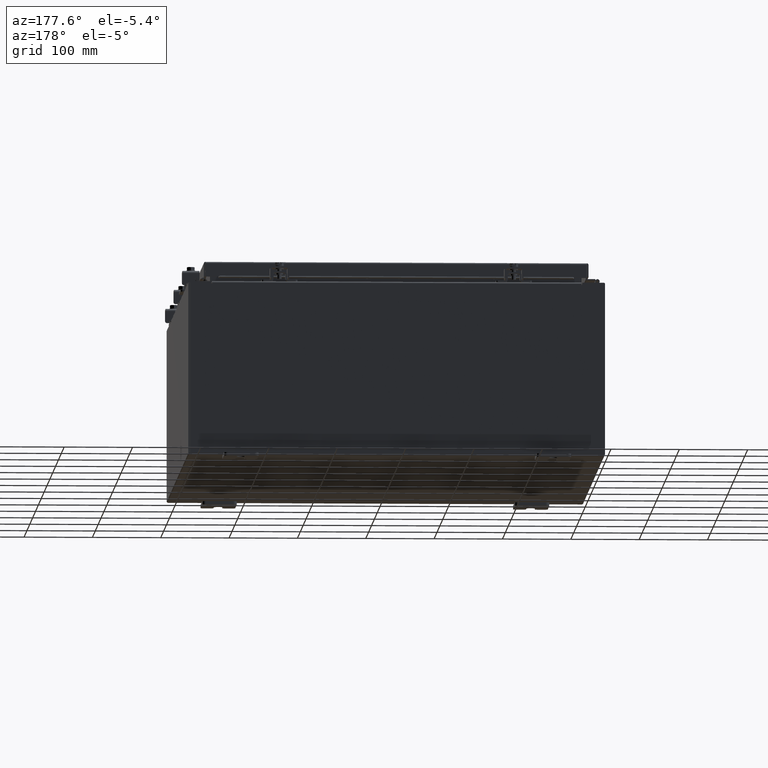
[diagram: clean part render]
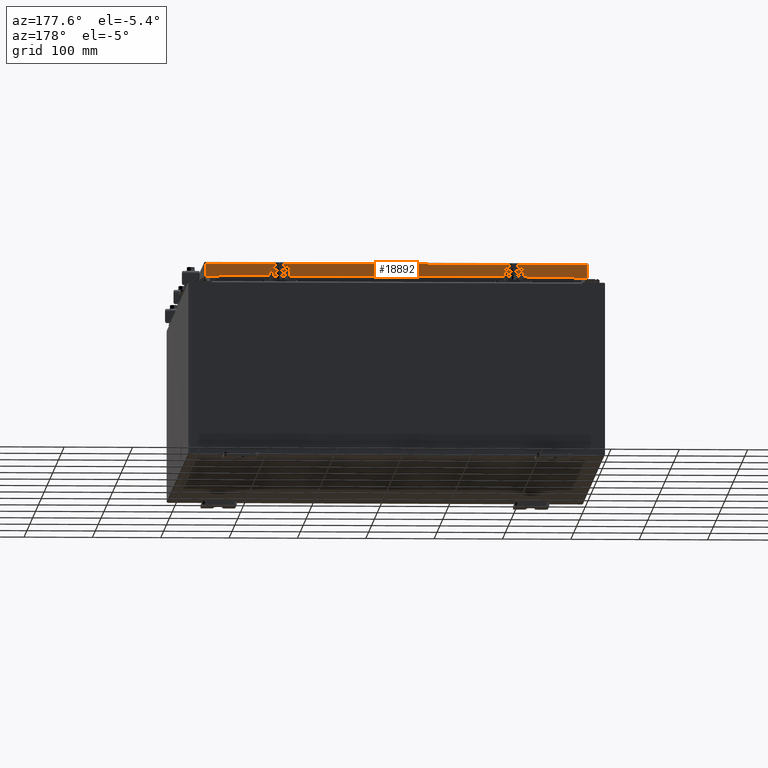
[diagram: same view with one face highlighted and labeled with its STEP entity id]
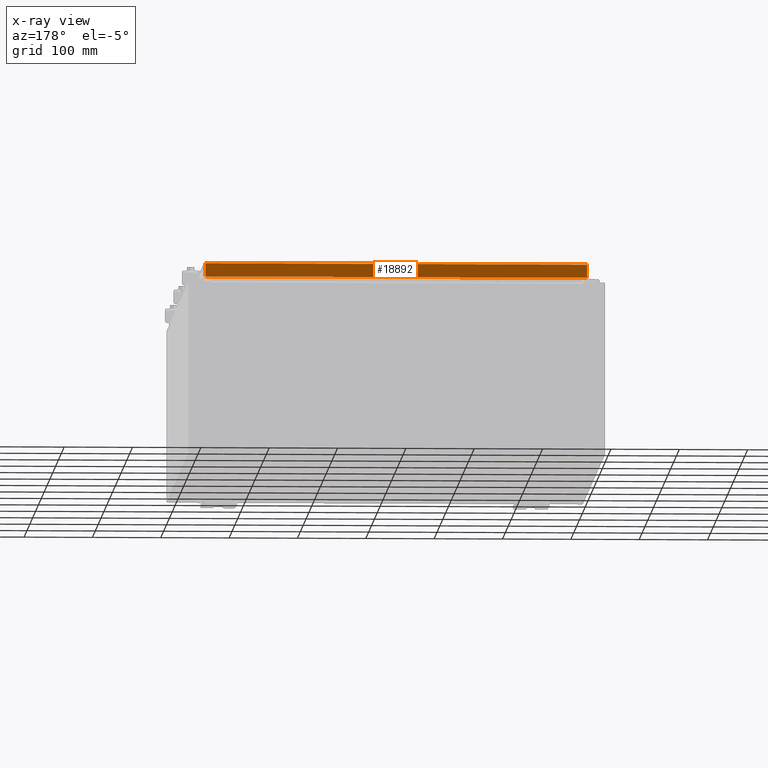
[diagram: x-ray of the same camera — body ghosted, the highlighted face saturated]
A machine part, auxiliary view. The second image highlights one B-rep face of the part: STEP entity #18892.
The next image is the same camera in x-ray: the body ghosted, the highlighted face saturated — about 0% of this face is hidden behind the body in this view.
In plain terms, the highlighted planar face has unit normal (0, -1, -0).
Its self-contained STEP definition (entity closure, byte-faithful):
#995 = EDGE_CURVE ( 'NONE', #3431, #19469, #24693, .T. ) ;
#1488 = PLANE ( 'NONE',  #2631 ) ;
#1804 = EDGE_CURVE ( 'NONE', #4728, #19469, #29216, .T. ) ;
#2018 = CARTESIAN_POINT ( 'NONE',  ( -10.98915786437626700, 14.09399999999999900, -0.08770000000000007000 ) ) ;
#2245 = LINE ( 'NONE', #14609, #9361 ) ;
#2286 = ORIENTED_EDGE ( 'NONE', *, *, #17567, .F. ) ;
#2631 = AXIS2_PLACEMENT_3D ( 'NONE', #13243, #24180, #8012 ) ;
#3431 = VERTEX_POINT ( 'NONE', #9246 ) ;
#4728 = VERTEX_POINT ( 'NONE', #5409 ) ;
#5409 = CARTESIAN_POINT ( 'NONE',  ( 10.98915786437626700, 14.09399999999999900, -0.08770000000000007000 ) ) ;
#5916 = CARTESIAN_POINT ( 'NONE',  ( -11.07799999999999900, 14.09400000000000100, -0.8500000000000024200 ) ) ;
#7015 = ORIENTED_EDGE ( 'NONE', *, *, #14240, .F. ) ;
#7972 = ORIENTED_EDGE ( 'NONE', *, *, #995, .F. ) ;
#7984 = DIRECTION ( 'NONE',  ( 1.000000000000000000, -0.0000000000000000000, -0.0000000000000000000 ) ) ;
#8012 = DIRECTION ( 'NONE',  ( 0.0000000000000000000, 2.818880942772350300E-015, -1.000000000000000000 ) ) ;
#8199 = CARTESIAN_POINT ( 'NONE',  ( -10.23915786437627100, 14.09399999999999900, -0.8500000000000033100 ) ) ;
#9246 = CARTESIAN_POINT ( 'NONE',  ( 10.23915786437626700, 14.09399999999999900, -0.8500000000000033100 ) ) ;
#9361 = VECTOR ( 'NONE', #19804, 39.37007874015748100 ) ;
#9518 = VECTOR ( 'NONE', #18958, 39.37007874015748100 ) ;
#11602 = FACE_OUTER_BOUND ( 'NONE', #37169, .T. ) ;
#13138 = CARTESIAN_POINT ( 'NONE',  ( -10.23915786437627100, 14.09399999999999900, -0.8500000000000033100 ) ) ;
#13243 = CARTESIAN_POINT ( 'NONE',  ( -4.898647335700341400E-030, 14.09399999999999900, 3.999012166344507700E-014 ) ) ;
#14240 = EDGE_CURVE ( 'NONE', #17951, #15712, #18023, .T. ) ;
#14609 = CARTESIAN_POINT ( 'NONE',  ( -10.98915786437626900, 14.09399999999999900, -0.07469999999999978000 ) ) ;
#15712 = VERTEX_POINT ( 'NONE', #13138 ) ;
#16580 = DIRECTION ( 'NONE',  ( 0.0000000000000000000, 2.818880942772350300E-015, -1.000000000000000000 ) ) ;
#17567 = EDGE_CURVE ( 'NONE', #20475, #17951, #2245, .T. ) ;
#17951 = VERTEX_POINT ( 'NONE', #27074 ) ;
#18023 = LINE ( 'NONE', #5916, #9518 ) ;
#18892 = ADVANCED_FACE ( 'NONE', ( #11602 ), #1488, .F. ) ;
#18958 = DIRECTION ( 'NONE',  ( 1.000000000000000000, -4.379057701015054300E-047, 1.233005954894504400E-016 ) ) ;
#19077 = ORIENTED_EDGE ( 'NONE', *, *, #19338, .F. ) ;
#19338 = EDGE_CURVE ( 'NONE', #4728, #20475, #19855, .T. ) ;
#19469 = VERTEX_POINT ( 'NONE', #30424 ) ;
#19804 = DIRECTION ( 'NONE',  ( -0.0000000000000000000, 2.818880942772350300E-015, -1.000000000000000000 ) ) ;
#19855 = LINE ( 'NONE', #28894, #27697 ) ;
#20076 = ORIENTED_EDGE ( 'NONE', *, *, #31518, .F. ) ;
#20475 = VERTEX_POINT ( 'NONE', #2018 ) ;
#21495 = VECTOR ( 'NONE', #16580, 39.37007874015748100 ) ;
#22765 = CARTESIAN_POINT ( 'NONE',  ( 10.98915786437626900, 14.09399999999999900, 3.999012166344507700E-014 ) ) ;
#24017 = LINE ( 'NONE', #8199, #33598 ) ;
#24180 = DIRECTION ( 'NONE',  ( 3.475696988576941300E-031, -1.000000000000000000, -2.818880942772350300E-015 ) ) ;
#24693 = LINE ( 'NONE', #33119, #26550 ) ;
#26550 = VECTOR ( 'NONE', #37408, 39.37007874015748100 ) ;
#26631 = ORIENTED_EDGE ( 'NONE', *, *, #1804, .T. ) ;
#27074 = CARTESIAN_POINT ( 'NONE',  ( -10.98915786437626900, 14.09400000000000100, -0.8500000000000024200 ) ) ;
#27697 = VECTOR ( 'NONE', #27752, 39.37007874015748100 ) ;
#27752 = DIRECTION ( 'NONE',  ( -1.000000000000000000, -3.475696988576942200E-031, -9.473942235605600700E-046 ) ) ;
#28894 = CARTESIAN_POINT ( 'NONE',  ( -11.07799999999999900, 14.09399999999999900, -0.08770000000000007000 ) ) ;
#29216 = LINE ( 'NONE', #22765, #21495 ) ;
#30424 = CARTESIAN_POINT ( 'NONE',  ( 10.98915786437626700, 14.09400000000000100, -0.8499999999999996400 ) ) ;
#31518 = EDGE_CURVE ( 'NONE', #15712, #3431, #24017, .T. ) ;
#33119 = CARTESIAN_POINT ( 'NONE',  ( -11.07799999999999900, 14.09400000000000100, -0.8500000000000024200 ) ) ;
#33598 = VECTOR ( 'NONE', #7984, 39.37007874015748100 ) ;
#37169 = EDGE_LOOP ( 'NONE', ( #19077, #26631, #7972, #20076, #7015, #2286 ) ) ;
#37408 = DIRECTION ( 'NONE',  ( 1.000000000000000000, -4.379057701015054300E-047, 1.233005954894504400E-016 ) ) ;